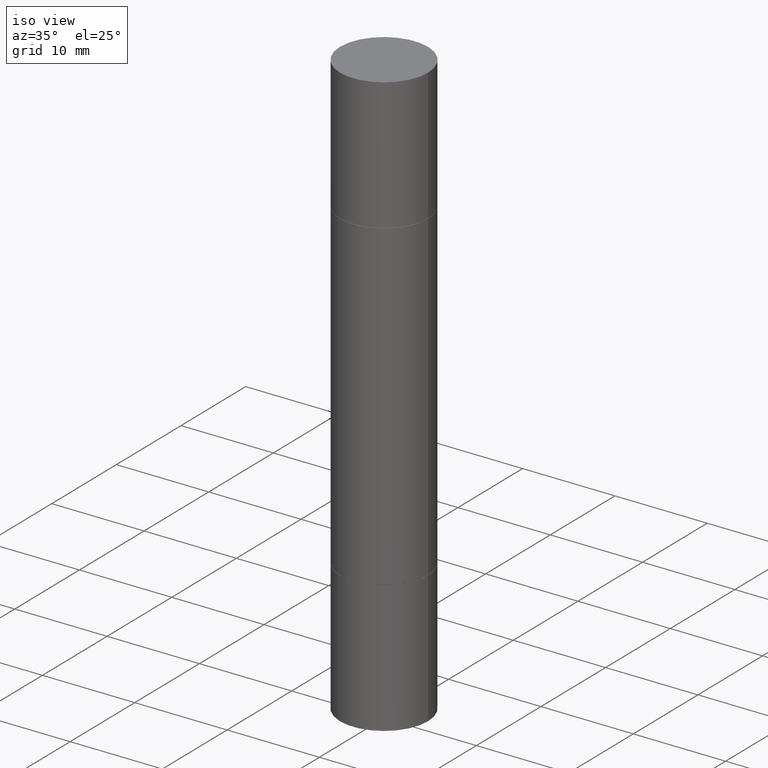
[diagram: clean part render]
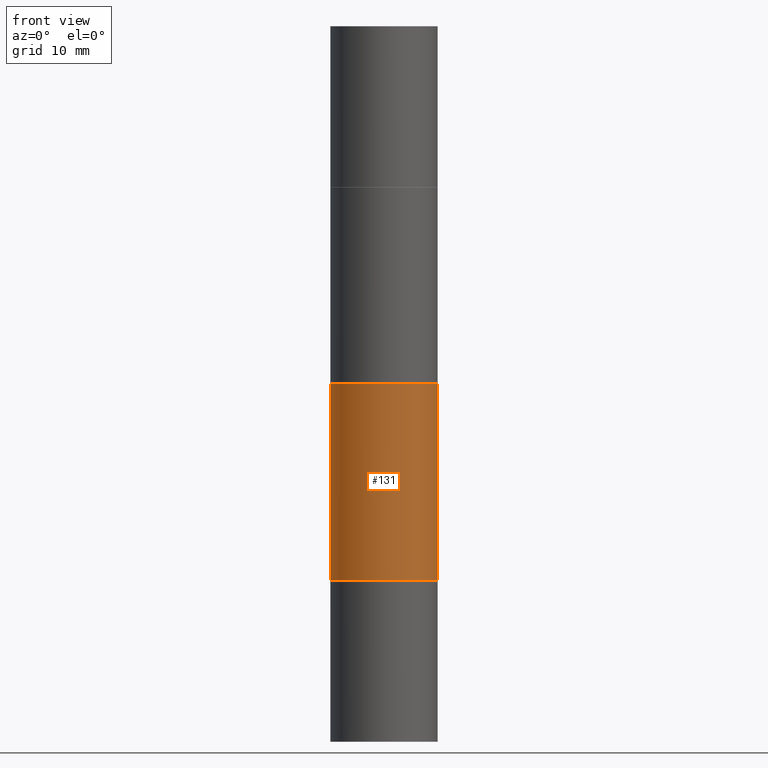
[diagram: tour spotlight — one face highlighted and labeled with its STEP entity id]
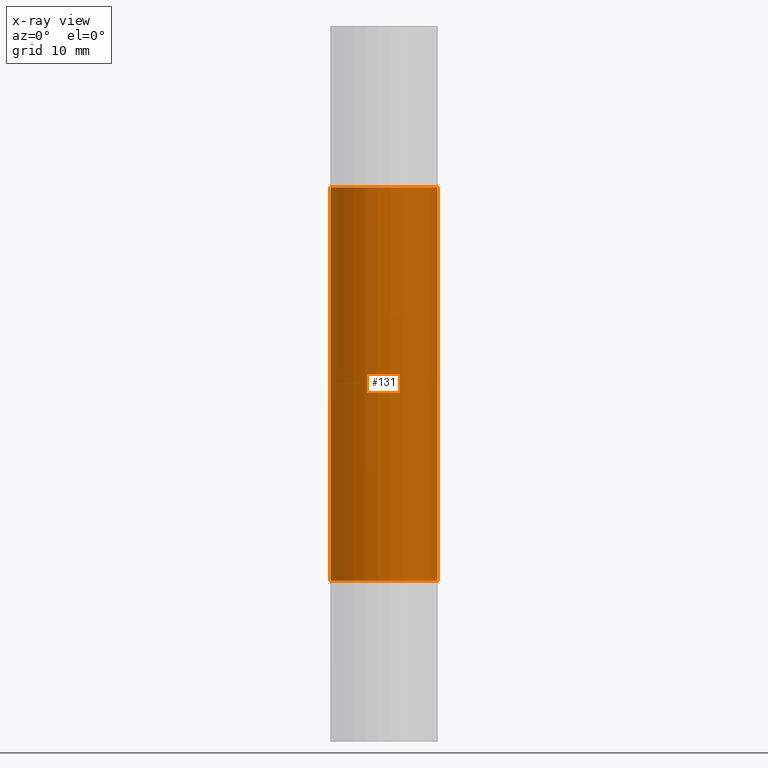
[diagram: x-ray of the same camera — body ghosted, this tour face saturated]
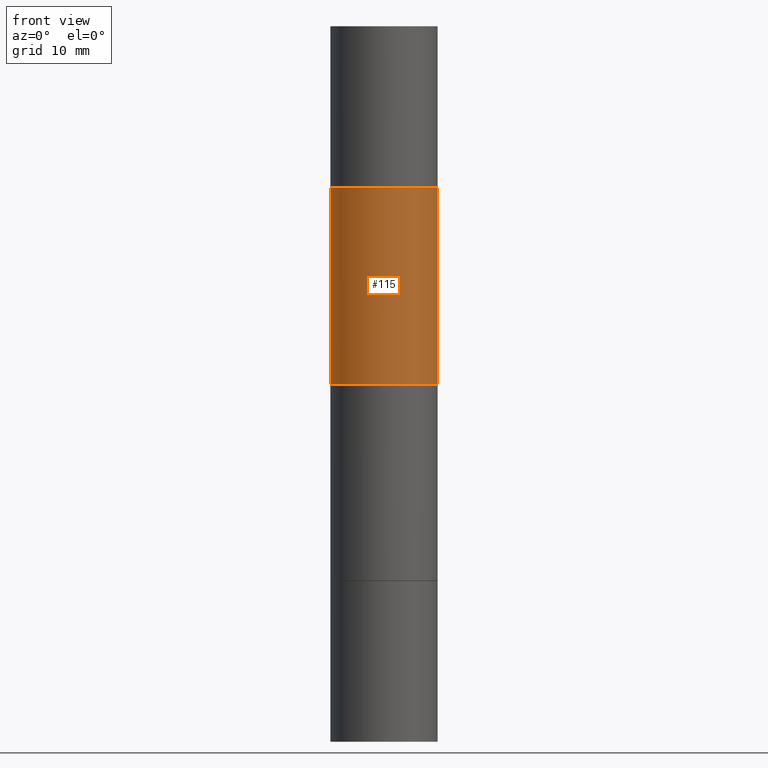
[diagram: tour spotlight — one face highlighted and labeled with its STEP entity id]
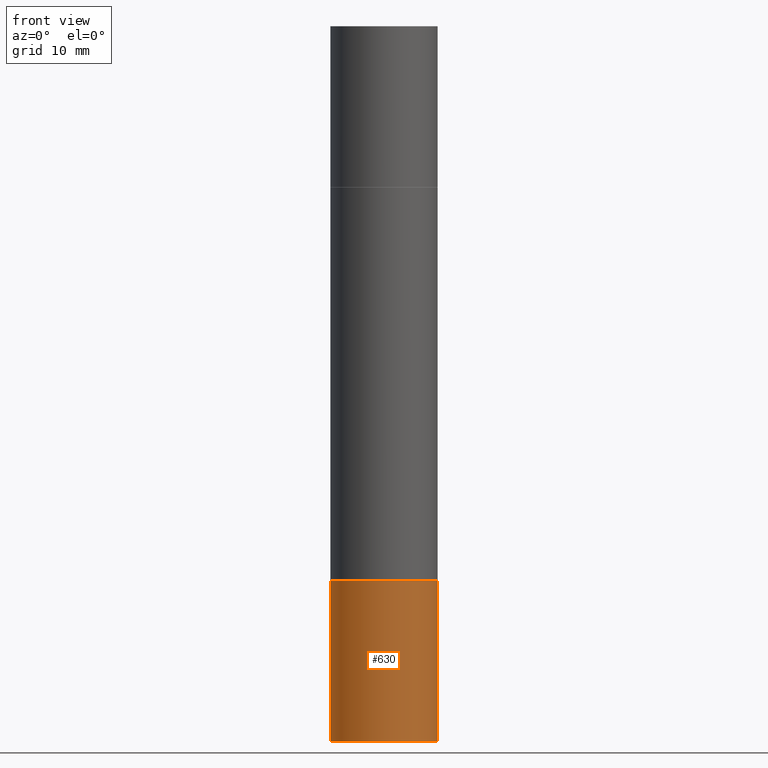
[diagram: tour spotlight — one face highlighted and labeled with its STEP entity id]
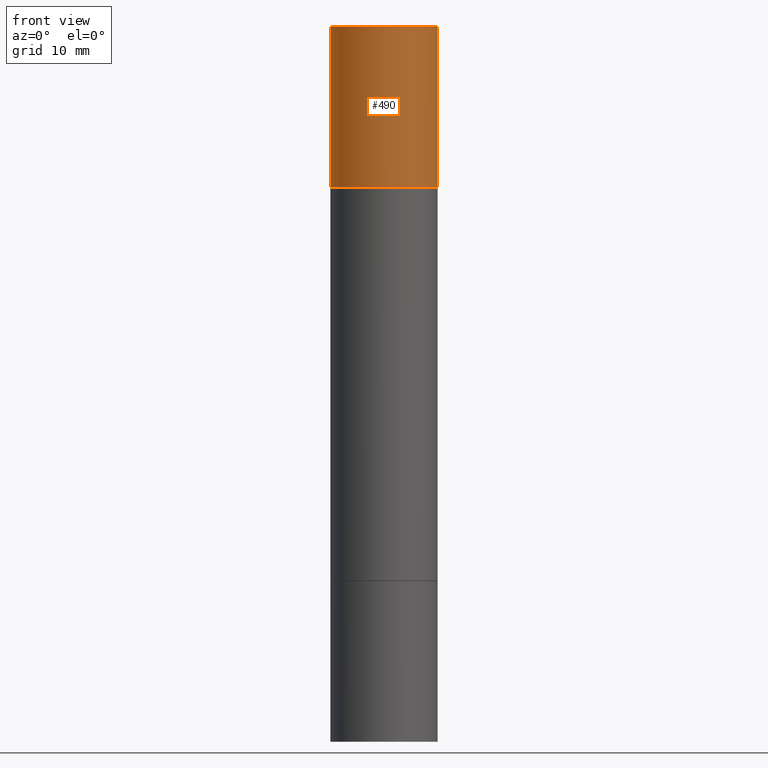
[diagram: tour spotlight — one face highlighted and labeled with its STEP entity id]
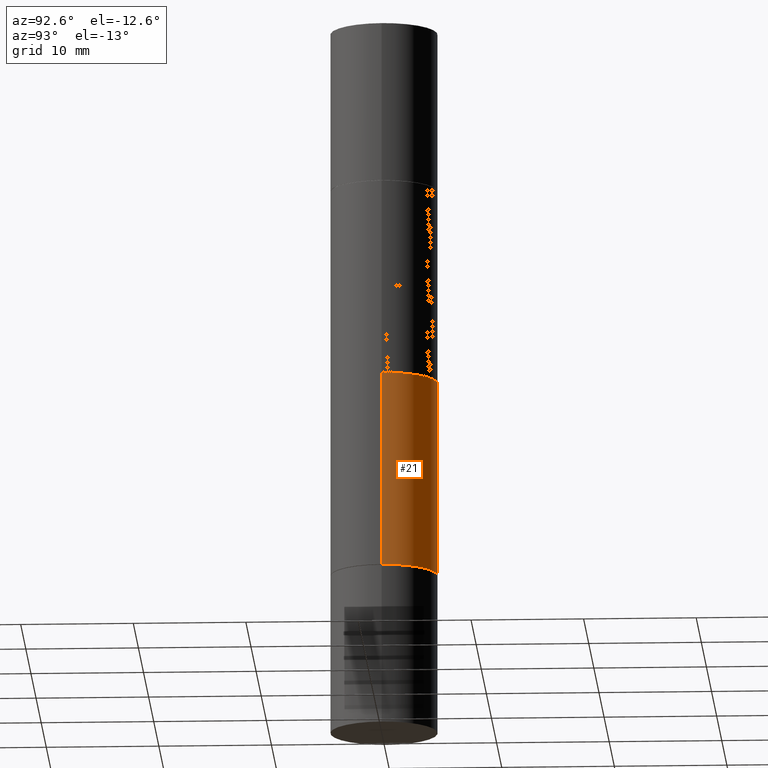
[diagram: tour spotlight — one face highlighted and labeled with its STEP entity id]
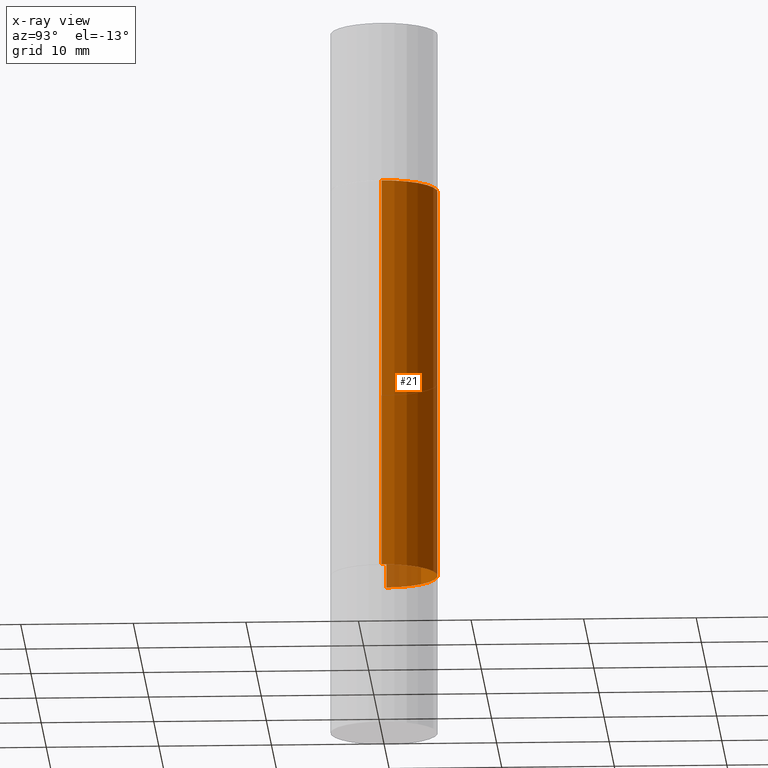
[diagram: x-ray of the same camera — body ghosted, this tour face saturated]
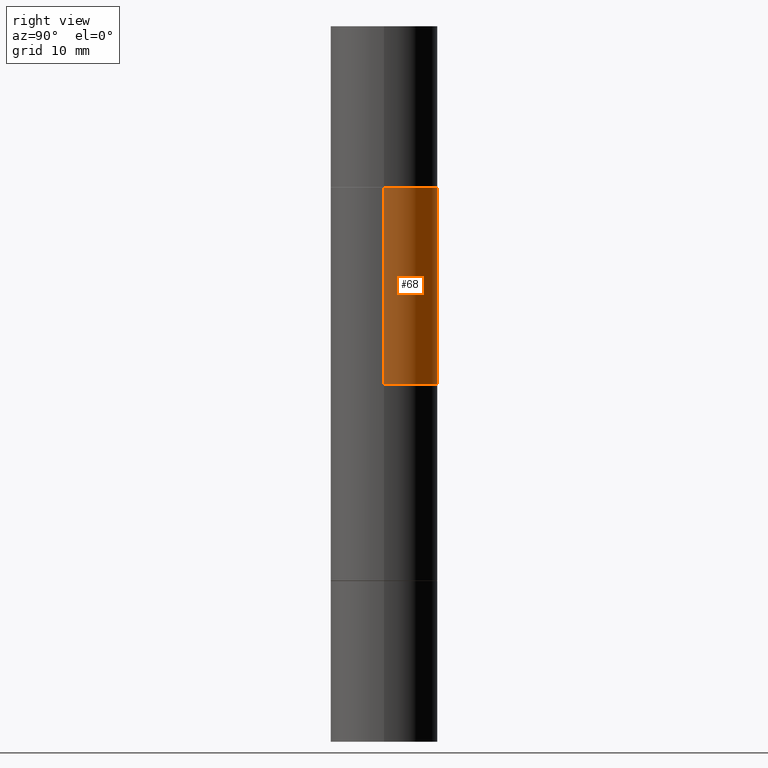
[diagram: tour spotlight — one face highlighted and labeled with its STEP entity id]
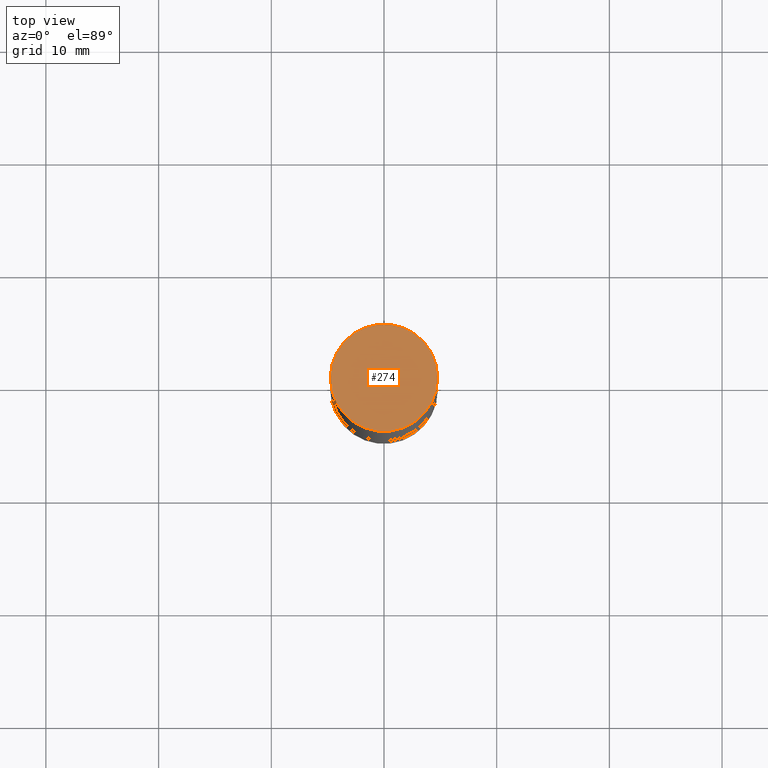
[diagram: tour spotlight — one face highlighted and labeled with its STEP entity id]
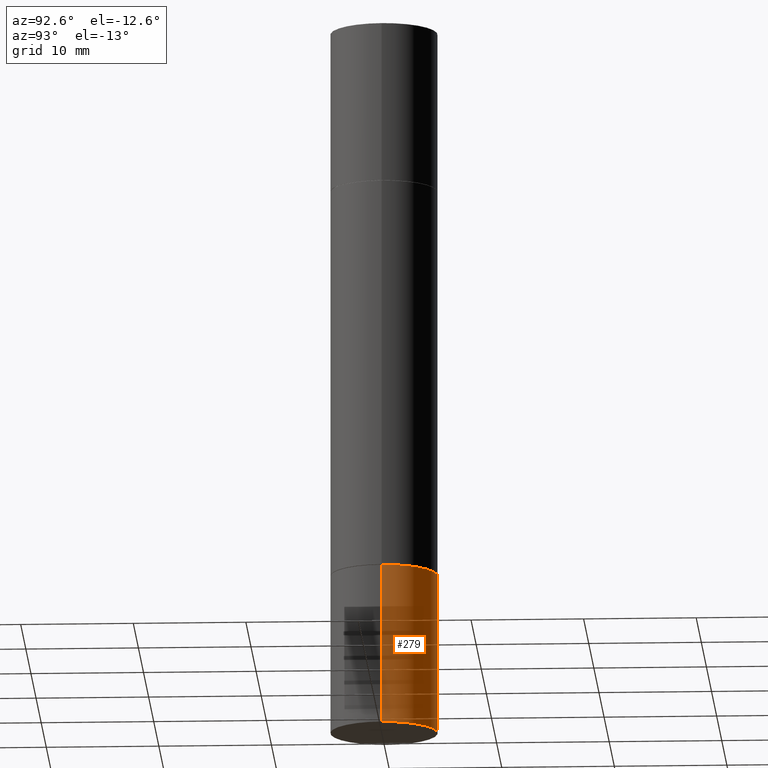
[diagram: tour spotlight — one face highlighted and labeled with its STEP entity id]
A machine part: a face-by-face anatomy tour. The part has 26 B-rep faces; the first image is the clean iso view, then the 8 largest visible faces are spotlighted one at a time (largest first), each with its STEP entity span.

Face 1 — front view, entity #131. An x-ray twin of the same camera follows (body ghosted, this face saturated) — the face is partly hidden behind the body. In plain terms, the highlighted cylindrical surface (partial cylindrical patch) has radius 4.7625 mm, axis along (-0, -0, -1).
Definition (entity closure, byte-faithful):
#15 = CIRCLE ( 'NONE', #492, 0.1875000000000000278 ) ;
#17 = FACE_OUTER_BOUND ( 'NONE', #320, .T. ) ;
#39 = VERTEX_POINT ( 'NONE', #82 ) ;
#42 = CIRCLE ( 'NONE', #161, 0.1875000000000000278 ) ;
#53 = DIRECTION ( 'NONE',  ( 1.000000000000000000, -6.982962677686266711E-15, 0.000000000000000000 ) ) ;
#54 = DIRECTION ( 'NONE',  ( 1.000000000000000000, -6.982962677686266711E-15, 0.000000000000000000 ) ) ;
#74 = DIRECTION ( 'NONE',  ( 1.000000000000000000, -6.982962677686270655E-15, 0.000000000000000000 ) ) ;
#82 = CARTESIAN_POINT ( 'NONE',  ( 0.1875000000000000278, -8.072304855405348046E-15, -1.936999999999999833 ) ) ;
#90 = EDGE_CURVE ( 'NONE', #565, #237, #15, .T. ) ;
#97 = ORIENTED_EDGE ( 'NONE', *, *, #90, .F. ) ;
#98 = CARTESIAN_POINT ( 'NONE',  ( 0.1874999999999999167, -1.003977019005979665E-14, -2.499999999999999556 ) ) ;
#126 = CARTESIAN_POINT ( 'NONE',  ( 4.736873077580609355E-29, -6.762999353339172249E-15, -1.936999999999999833 ) ) ;
#131 = ADVANCED_FACE ( 'NONE', ( #17 ), #216, .T. ) ;
#141 = DIRECTION ( 'NONE',  ( -2.445468806185136877E-29, -3.492890411551753071E-15, -1.000000000000000000 ) ) ;
#151 = EDGE_CURVE ( 'NONE', #565, #369, #434, .T. ) ;
#161 = AXIS2_PLACEMENT_3D ( 'NONE', #126, #454, #54 ) ;
#168 = CARTESIAN_POINT ( 'NONE',  ( -0.1874999999999999722, -3.078008298971767937E-15, -1.936999999999999833 ) ) ;
#189 = DIRECTION ( 'NONE',  ( -2.445468806185136597E-29, -3.492890411551752677E-15, -1.000000000000000000 ) ) ;
#216 = CYLINDRICAL_SURFACE ( 'NONE', #325, 0.1874999999999999167 ) ;
#237 = VERTEX_POINT ( 'NONE', #473 ) ;
#242 = LINE ( 'NONE', #98, #322 ) ;
#301 = CARTESIAN_POINT ( 'NONE',  ( 4.736873077580609355E-29, -1.964735960817877172E-15, -0.5629999999999997229 ) ) ;
#320 = EDGE_LOOP ( 'NONE', ( #97, #393, #365, #613 ) ) ;
#322 = VECTOR ( 'NONE', #141, 39.37007874015748143 ) ;
#325 = AXIS2_PLACEMENT_3D ( 'NONE', #647, #189, #74 ) ;
#365 = ORIENTED_EDGE ( 'NONE', *, *, #483, .T. ) ;
#369 = VERTEX_POINT ( 'NONE', #168 ) ;
#393 = ORIENTED_EDGE ( 'NONE', *, *, #151, .T. ) ;
#427 = VECTOR ( 'NONE', #501, 39.37007874015748143 ) ;
#434 = LINE ( 'NONE', #556, #427 ) ;
#454 = DIRECTION ( 'NONE',  ( -2.445468806185136597E-29, 3.491481338843145583E-15, 1.000000000000000000 ) ) ;
#473 = CARTESIAN_POINT ( 'NONE',  ( 0.1875000000000000278, -3.274041462884052574E-15, -0.5629999999999997229 ) ) ;
#483 = EDGE_CURVE ( 'NONE', #369, #39, #42, .T. ) ;
#492 = AXIS2_PLACEMENT_3D ( 'NONE', #301, #517, #53 ) ;
#501 = DIRECTION ( 'NONE',  ( -2.445468806185136877E-29, -3.492890411551753071E-15, -1.000000000000000000 ) ) ;
#517 = DIRECTION ( 'NONE',  ( 2.445468806185136597E-29, 3.492890411551752677E-15, 1.000000000000000000 ) ) ;
#556 = CARTESIAN_POINT ( 'NONE',  ( -0.1874999999999999167, -7.444121313411459473E-15, -2.499999999999999556 ) ) ;
#565 = VERTEX_POINT ( 'NONE', #619 ) ;
#613 = ORIENTED_EDGE ( 'NONE', *, *, #680, .F. ) ;
#619 = CARTESIAN_POINT ( 'NONE',  ( -0.1875000000000000278, -6.783925862357143136E-16, -0.5629999999999997229 ) ) ;
#647 = CARTESIAN_POINT ( 'NONE',  ( 0.000000000000000000, -8.730464687993621641E-15, -2.499999999999999556 ) ) ;
#680 = EDGE_CURVE ( 'NONE', #237, #39, #242, .T. ) ;

Face 2 — front view, entity #115. In plain terms, the highlighted cylindrical surface (partial cylindrical patch) has radius 4.7625 mm, axis along (-0, -0, -1).
Definition (entity closure, byte-faithful):
#35 = EDGE_CURVE ( 'NONE', #518, #119, #122, .T. ) ;
#38 = EDGE_LOOP ( 'NONE', ( #208, #278, #540, #476 ) ) ;
#56 = CARTESIAN_POINT ( 'NONE',  ( 0.1874999999999999167, -4.473849319252078646E-15, -1.249999999999999778 ) ) ;
#101 = AXIS2_PLACEMENT_3D ( 'NONE', #185, #281, #515 ) ;
#115 = ADVANCED_FACE ( 'NONE', ( #658 ), #548, .T. ) ;
#119 = VERTEX_POINT ( 'NONE', #209 ) ;
#122 = LINE ( 'NONE', #382, #225 ) ;
#142 = DIRECTION ( 'NONE',  ( 1.000000000000000000, -6.982962677686266711E-15, 0.000000000000000000 ) ) ;
#160 = CARTESIAN_POINT ( 'NONE',  ( 0.1875000000000000278, -3.274041462884052574E-15, -0.5629999999999997229 ) ) ;
#185 = CARTESIAN_POINT ( 'NONE',  ( 3.056836007731420185E-29, -4.364351673553931682E-15, -1.249999999999999778 ) ) ;
#192 = VERTEX_POINT ( 'NONE', #56 ) ;
#202 = AXIS2_PLACEMENT_3D ( 'NONE', #615, #302, #142 ) ;
#208 = ORIENTED_EDGE ( 'NONE', *, *, #516, .F. ) ;
#209 = CARTESIAN_POINT ( 'NONE',  ( -0.1874999999999999167, -1.878200442603741470E-15, -1.249999999999999778 ) ) ;
#225 = VECTOR ( 'NONE', #544, 39.37007874015748143 ) ;
#276 = VERTEX_POINT ( 'NONE', #160 ) ;
#278 = ORIENTED_EDGE ( 'NONE', *, *, #35, .T. ) ;
#281 = DIRECTION ( 'NONE',  ( -0.000000000000000000, -3.492185875197449130E-15, -1.000000000000000000 ) ) ;
#302 = DIRECTION ( 'NONE',  ( 2.445468806185136597E-29, 3.492890411551752677E-15, 1.000000000000000000 ) ) ;
#313 = DIRECTION ( 'NONE',  ( -2.445468806185136597E-29, -3.492890411551752677E-15, -1.000000000000000000 ) ) ;
#318 = DIRECTION ( 'NONE',  ( 1.000000000000000000, -6.982962677686270655E-15, 0.000000000000000000 ) ) ;
#341 = CARTESIAN_POINT ( 'NONE',  ( -0.1875000000000000278, -6.783925862357143136E-16, -0.5629999999999997229 ) ) ;
#357 = CIRCLE ( 'NONE', #202, 0.1875000000000000278 ) ;
#382 = CARTESIAN_POINT ( 'NONE',  ( -0.1874999999999999167, -7.444121313411459473E-15, -2.499999999999999556 ) ) ;
#386 = DIRECTION ( 'NONE',  ( -2.445468806185136877E-29, -3.492890411551753071E-15, -1.000000000000000000 ) ) ;
#476 = ORIENTED_EDGE ( 'NONE', *, *, #623, .F. ) ;
#513 = AXIS2_PLACEMENT_3D ( 'NONE', #639, #313, #318 ) ;
#515 = DIRECTION ( 'NONE',  ( 0.000000000000000000, 1.000000000000000000, -2.913971193241881950E-15 ) ) ;
#516 = EDGE_CURVE ( 'NONE', #518, #276, #357, .T. ) ;
#518 = VERTEX_POINT ( 'NONE', #341 ) ;
#520 = VECTOR ( 'NONE', #386, 39.37007874015748143 ) ;
#540 = ORIENTED_EDGE ( 'NONE', *, *, #580, .F. ) ;
#544 = DIRECTION ( 'NONE',  ( -2.445468806185136877E-29, -3.492890411551753071E-15, -1.000000000000000000 ) ) ;
#548 = CYLINDRICAL_SURFACE ( 'NONE', #513, 0.1874999999999999167 ) ;
#553 = CARTESIAN_POINT ( 'NONE',  ( 0.1874999999999999167, -1.003977019005979665E-14, -2.499999999999999556 ) ) ;
#562 = LINE ( 'NONE', #553, #520 ) ;
#563 = CIRCLE ( 'NONE', #101, 0.1874999999999999167 ) ;
#580 = EDGE_CURVE ( 'NONE', #192, #119, #563, .T. ) ;
#615 = CARTESIAN_POINT ( 'NONE',  ( 4.736873077580609355E-29, -1.964735960817877172E-15, -0.5629999999999997229 ) ) ;
#623 = EDGE_CURVE ( 'NONE', #276, #192, #562, .T. ) ;
#639 = CARTESIAN_POINT ( 'NONE',  ( 0.000000000000000000, -8.730464687993621641E-15, -2.499999999999999556 ) ) ;
#658 = FACE_OUTER_BOUND ( 'NONE', #38, .T. ) ;

Face 3 — front view, entity #630. In plain terms, the highlighted cylindrical surface (partial cylindrical patch) has radius 4.7625 mm, axis along (-0, 0, 1).
Definition (entity closure, byte-faithful):
#37 = DIRECTION ( 'NONE',  ( 1.000000000000000000, -6.982962677686265922E-15, 4.876176775795935793E-29 ) ) ;
#49 = AXIS2_PLACEMENT_3D ( 'NONE', #493, #497, #37 ) ;
#51 = CIRCLE ( 'NONE', #366, 0.1875000000000000278 ) ;
#52 = CARTESIAN_POINT ( 'NONE',  ( -0.1875000000000000278, -6.415329461342752645E-15, -1.937999999999999945 ) ) ;
#64 = DIRECTION ( 'NONE',  ( -2.445468806185136597E-29, 3.491481338843145583E-15, 1.000000000000000000 ) ) ;
#72 = VERTEX_POINT ( 'NONE', #408 ) ;
#81 = ORIENTED_EDGE ( 'NONE', *, *, #230, .F. ) ;
#100 = CIRCLE ( 'NONE', #479, 0.1875000000000000278 ) ;
#153 = ORIENTED_EDGE ( 'NONE', *, *, #199, .T. ) ;
#178 = CYLINDRICAL_SURFACE ( 'NONE', #49, 0.1875000000000000278 ) ;
#181 = VERTEX_POINT ( 'NONE', #652 ) ;
#197 = VECTOR ( 'NONE', #420, 39.37007874015748143 ) ;
#199 = EDGE_CURVE ( 'NONE', #648, #72, #100, .T. ) ;
#230 = EDGE_CURVE ( 'NONE', #590, #181, #51, .T. ) ;
#251 = VECTOR ( 'NONE', #537, 39.37007874015748143 ) ;
#255 = CARTESIAN_POINT ( 'NONE',  ( -0.1875000000000000278, 1.332267629550188046E-15, -9.223003294227947991E-30 ) ) ;
#273 = FACE_OUTER_BOUND ( 'NONE', #671, .T. ) ;
#321 = LINE ( 'NONE', #255, #197 ) ;
#331 = ORIENTED_EDGE ( 'NONE', *, *, #376, .T. ) ;
#332 = LINE ( 'NONE', #380, #251 ) ;
#336 = EDGE_CURVE ( 'NONE', #648, #590, #321, .T. ) ;
#366 = AXIS2_PLACEMENT_3D ( 'NONE', #523, #651, #593 ) ;
#373 = CARTESIAN_POINT ( 'NONE',  ( -0.1875000000000000278, -6.415329461342752645E-15, -2.500000000000000000 ) ) ;
#376 = EDGE_CURVE ( 'NONE', #72, #181, #332, .T. ) ;
#380 = CARTESIAN_POINT ( 'NONE',  ( 0.1875000000000000278, -1.309305502066175008E-15, 9.142831454617381013E-30 ) ) ;
#388 = ORIENTED_EDGE ( 'NONE', *, *, #336, .F. ) ;
#408 = CARTESIAN_POINT ( 'NONE',  ( 0.1875000000000000278, -1.003800884917403995E-14, -2.500000000000000000 ) ) ;
#420 = DIRECTION ( 'NONE',  ( -2.445468806185136877E-29, 3.491481338843145188E-15, 1.000000000000000000 ) ) ;
#428 = DIRECTION ( 'NONE',  ( 1.000000000000000000, -6.982962677686266711E-15, 0.000000000000000000 ) ) ;
#479 = AXIS2_PLACEMENT_3D ( 'NONE', #485, #64, #428 ) ;
#485 = CARTESIAN_POINT ( 'NONE',  ( 6.113672015462842613E-29, -8.728703347107864943E-15, -2.500000000000000000 ) ) ;
#493 = CARTESIAN_POINT ( 'NONE',  ( 0.000000000000000000, 0.000000000000000000, 0.000000000000000000 ) ) ;
#497 = DIRECTION ( 'NONE',  ( -2.445468806185136597E-29, 3.491481338843145583E-15, 1.000000000000000000 ) ) ;
#523 = CARTESIAN_POINT ( 'NONE',  ( 4.739318546386794397E-29, -6.766490834678016045E-15, -1.937999999999999945 ) ) ;
#537 = DIRECTION ( 'NONE',  ( -2.445468806185136877E-29, 3.491481338843145188E-15, 1.000000000000000000 ) ) ;
#590 = VERTEX_POINT ( 'NONE', #52 ) ;
#593 = DIRECTION ( 'NONE',  ( 1.000000000000000000, -6.982962677686266711E-15, 0.000000000000000000 ) ) ;
#630 = ADVANCED_FACE ( 'NONE', ( #273 ), #178, .T. ) ;
#648 = VERTEX_POINT ( 'NONE', #373 ) ;
#651 = DIRECTION ( 'NONE',  ( -2.445468806185136597E-29, 3.491481338843145583E-15, 1.000000000000000000 ) ) ;
#652 = CARTESIAN_POINT ( 'NONE',  ( 0.1875000000000000278, -8.075796336744191053E-15, -1.937999999999999945 ) ) ;
#671 = EDGE_LOOP ( 'NONE', ( #388, #153, #331, #81 ) ) ;

Face 4 — front view, entity #490. In plain terms, the highlighted cylindrical surface (partial cylindrical patch) has radius 4.7625 mm, axis along (-0, -0, -1).
Definition (entity closure, byte-faithful):
#12 = ORIENTED_EDGE ( 'NONE', *, *, #46, .F. ) ;
#28 = DIRECTION ( 'NONE',  ( 2.445468806185136597E-29, 3.492890411551752677E-15, 1.000000000000000000 ) ) ;
#33 = DIRECTION ( 'NONE',  ( 1.000000000000000000, -6.982962677686265922E-15, 0.000000000000000000 ) ) ;
#40 = VERTEX_POINT ( 'NONE', #139 ) ;
#44 = CARTESIAN_POINT ( 'NONE',  ( 6.113672015462842613E-29, 1.761340885760521790E-18, 5.463695987328526437E-16 ) ) ;
#46 = EDGE_CURVE ( 'NONE', #601, #40, #138, .T. ) ;
#73 = DIRECTION ( 'NONE',  ( 2.445468806185136597E-29, 3.492890411551752677E-15, 1.000000000000000000 ) ) ;
#84 = CARTESIAN_POINT ( 'NONE',  ( -0.1875000000000000278, 3.066025098218802702E-16, 5.463695987328561936E-16 ) ) ;
#91 = VERTEX_POINT ( 'NONE', #204 ) ;
#99 = VERTEX_POINT ( 'NONE', #243 ) ;
#105 = DIRECTION ( 'NONE',  ( 1.000000000000000000, -6.982962677686266711E-15, 0.000000000000000000 ) ) ;
#138 = CIRCLE ( 'NONE', #622, 0.1875000000000000278 ) ;
#139 = CARTESIAN_POINT ( 'NONE',  ( 0.1875000000000000278, -1.307544161180414563E-15, 5.463695987328526437E-16 ) ) ;
#167 = DIRECTION ( 'NONE',  ( -2.445468806185136877E-29, -3.492890411551753071E-15, -1.000000000000000000 ) ) ;
#193 = ORIENTED_EDGE ( 'NONE', *, *, #611, .F. ) ;
#204 = CARTESIAN_POINT ( 'NONE',  ( -0.1875000000000000278, 3.066025098218802702E-16, -0.5619999999999996110 ) ) ;
#211 = VECTOR ( 'NONE', #167, 39.37007874015748143 ) ;
#243 = CARTESIAN_POINT ( 'NONE',  ( 0.1875000000000000278, -3.270548572472500038E-15, -0.5619999999999996110 ) ) ;
#256 = LINE ( 'NONE', #587, #599 ) ;
#272 = LINE ( 'NONE', #455, #211 ) ;
#285 = EDGE_LOOP ( 'NONE', ( #12, #475, #592, #193 ) ) ;
#308 = AXIS2_PLACEMENT_3D ( 'NONE', #411, #399, #105 ) ;
#311 = DIRECTION ( 'NONE',  ( -2.445468806185136877E-29, -3.492890411551753071E-15, -1.000000000000000000 ) ) ;
#334 = DIRECTION ( 'NONE',  ( 1.000000000000000000, -6.982962677686266711E-15, 0.000000000000000000 ) ) ;
#345 = EDGE_CURVE ( 'NONE', #601, #91, #256, .T. ) ;
#361 = FACE_OUTER_BOUND ( 'NONE', #285, .T. ) ;
#384 = EDGE_CURVE ( 'NONE', #91, #99, #459, .T. ) ;
#399 = DIRECTION ( 'NONE',  ( -2.445468806185136597E-29, -3.492890411551752677E-15, -1.000000000000000000 ) ) ;
#411 = CARTESIAN_POINT ( 'NONE',  ( 0.000000000000000000, -8.730464687993621641E-15, -2.499999999999999556 ) ) ;
#455 = CARTESIAN_POINT ( 'NONE',  ( 0.1875000000000000278, -1.003977019005979665E-14, -2.499999999999999556 ) ) ;
#459 = CIRCLE ( 'NONE', #661, 0.1875000000000000278 ) ;
#475 = ORIENTED_EDGE ( 'NONE', *, *, #345, .T. ) ;
#490 = ADVANCED_FACE ( 'NONE', ( #361 ), #506, .T. ) ;
#495 = CARTESIAN_POINT ( 'NONE',  ( 4.739318546386794397E-29, -1.961243070406324635E-15, -0.5619999999999996110 ) ) ;
#506 = CYLINDRICAL_SURFACE ( 'NONE', #308, 0.1875000000000000278 ) ;
#587 = CARTESIAN_POINT ( 'NONE',  ( -0.1875000000000000278, -7.444121313411457895E-15, -2.499999999999999556 ) ) ;
#592 = ORIENTED_EDGE ( 'NONE', *, *, #384, .T. ) ;
#599 = VECTOR ( 'NONE', #311, 39.37007874015748143 ) ;
#601 = VERTEX_POINT ( 'NONE', #84 ) ;
#611 = EDGE_CURVE ( 'NONE', #40, #99, #272, .T. ) ;
#622 = AXIS2_PLACEMENT_3D ( 'NONE', #44, #28, #33 ) ;
#661 = AXIS2_PLACEMENT_3D ( 'NONE', #495, #73, #334 ) ;

Face 5 — auxiliary view, entity #21. An x-ray twin of the same camera follows (body ghosted, this face saturated) — the face is partly hidden behind the body. In plain terms, the highlighted cylindrical surface (partial cylindrical patch) has radius 4.7625 mm, axis along (-0, -0, -1).
Definition (entity closure, byte-faithful):
#3 = CIRCLE ( 'NONE', #654, 0.1875000000000000278 ) ;
#21 = ADVANCED_FACE ( 'NONE', ( #266 ), #486, .T. ) ;
#24 = CARTESIAN_POINT ( 'NONE',  ( 0.000000000000000000, -8.730464687993621641E-15, -2.499999999999999556 ) ) ;
#32 = AXIS2_PLACEMENT_3D ( 'NONE', #24, #478, #653 ) ;
#39 = VERTEX_POINT ( 'NONE', #82 ) ;
#61 = DIRECTION ( 'NONE',  ( 2.445468806185136597E-29, 3.492890411551752677E-15, 1.000000000000000000 ) ) ;
#82 = CARTESIAN_POINT ( 'NONE',  ( 0.1875000000000000278, -8.072304855405348046E-15, -1.936999999999999833 ) ) ;
#98 = CARTESIAN_POINT ( 'NONE',  ( 0.1874999999999999167, -1.003977019005979665E-14, -2.499999999999999556 ) ) ;
#104 = CARTESIAN_POINT ( 'NONE',  ( 4.736873077580609355E-29, -1.964735960817877172E-15, -0.5629999999999997229 ) ) ;
#141 = DIRECTION ( 'NONE',  ( -2.445468806185136877E-29, -3.492890411551753071E-15, -1.000000000000000000 ) ) ;
#151 = EDGE_CURVE ( 'NONE', #565, #369, #434, .T. ) ;
#166 = ORIENTED_EDGE ( 'NONE', *, *, #469, .T. ) ;
#168 = CARTESIAN_POINT ( 'NONE',  ( -0.1874999999999999722, -3.078008298971767937E-15, -1.936999999999999833 ) ) ;
#190 = EDGE_CURVE ( 'NONE', #237, #565, #609, .T. ) ;
#231 = CARTESIAN_POINT ( 'NONE',  ( 4.736873077580609355E-29, -6.762999353339172249E-15, -1.936999999999999833 ) ) ;
#237 = VERTEX_POINT ( 'NONE', #473 ) ;
#242 = LINE ( 'NONE', #98, #322 ) ;
#266 = FACE_OUTER_BOUND ( 'NONE', #666, .T. ) ;
#277 = ORIENTED_EDGE ( 'NONE', *, *, #680, .T. ) ;
#322 = VECTOR ( 'NONE', #141, 39.37007874015748143 ) ;
#369 = VERTEX_POINT ( 'NONE', #168 ) ;
#370 = ORIENTED_EDGE ( 'NONE', *, *, #190, .F. ) ;
#374 = DIRECTION ( 'NONE',  ( -2.445468806185136597E-29, 3.491481338843145583E-15, 1.000000000000000000 ) ) ;
#427 = VECTOR ( 'NONE', #501, 39.37007874015748143 ) ;
#434 = LINE ( 'NONE', #556, #427 ) ;
#469 = EDGE_CURVE ( 'NONE', #39, #369, #3, .T. ) ;
#473 = CARTESIAN_POINT ( 'NONE',  ( 0.1875000000000000278, -3.274041462884052574E-15, -0.5629999999999997229 ) ) ;
#478 = DIRECTION ( 'NONE',  ( -2.445468806185136597E-29, -3.492890411551752677E-15, -1.000000000000000000 ) ) ;
#484 = DIRECTION ( 'NONE',  ( 1.000000000000000000, -6.982962677686266711E-15, 0.000000000000000000 ) ) ;
#486 = CYLINDRICAL_SURFACE ( 'NONE', #32, 0.1874999999999999167 ) ;
#501 = DIRECTION ( 'NONE',  ( -2.445468806185136877E-29, -3.492890411551753071E-15, -1.000000000000000000 ) ) ;
#556 = CARTESIAN_POINT ( 'NONE',  ( -0.1874999999999999167, -7.444121313411459473E-15, -2.499999999999999556 ) ) ;
#565 = VERTEX_POINT ( 'NONE', #619 ) ;
#609 = CIRCLE ( 'NONE', #656, 0.1875000000000000278 ) ;
#619 = CARTESIAN_POINT ( 'NONE',  ( -0.1875000000000000278, -6.783925862357143136E-16, -0.5629999999999997229 ) ) ;
#629 = ORIENTED_EDGE ( 'NONE', *, *, #151, .F. ) ;
#646 = DIRECTION ( 'NONE',  ( 1.000000000000000000, -6.982962677686266711E-15, 0.000000000000000000 ) ) ;
#653 = DIRECTION ( 'NONE',  ( 1.000000000000000000, -6.982962677686270655E-15, 0.000000000000000000 ) ) ;
#654 = AXIS2_PLACEMENT_3D ( 'NONE', #231, #374, #484 ) ;
#656 = AXIS2_PLACEMENT_3D ( 'NONE', #104, #61, #646 ) ;
#666 = EDGE_LOOP ( 'NONE', ( #629, #370, #277, #166 ) ) ;
#680 = EDGE_CURVE ( 'NONE', #237, #39, #242, .T. ) ;

Face 6 — right view, entity #68. In plain terms, the highlighted cylindrical surface (partial cylindrical patch) has radius 4.7625 mm, axis along (-0, -0, -1).
Definition (entity closure, byte-faithful):
#18 = AXIS2_PLACEMENT_3D ( 'NONE', #258, #71, #649 ) ;
#25 = DIRECTION ( 'NONE',  ( 1.000000000000000000, -6.982962677686266711E-15, 0.000000000000000000 ) ) ;
#34 = CARTESIAN_POINT ( 'NONE',  ( 4.736873077580609355E-29, -1.964735960817877172E-15, -0.5629999999999997229 ) ) ;
#35 = EDGE_CURVE ( 'NONE', #518, #119, #122, .T. ) ;
#56 = CARTESIAN_POINT ( 'NONE',  ( 0.1874999999999999167, -4.473849319252078646E-15, -1.249999999999999778 ) ) ;
#68 = ADVANCED_FACE ( 'NONE', ( #145 ), #346, .T. ) ;
#69 = AXIS2_PLACEMENT_3D ( 'NONE', #437, #177, #354 ) ;
#71 = DIRECTION ( 'NONE',  ( -0.000000000000000000, -3.492185875197449130E-15, -1.000000000000000000 ) ) ;
#80 = CIRCLE ( 'NONE', #18, 0.1874999999999999167 ) ;
#103 = ORIENTED_EDGE ( 'NONE', *, *, #623, .T. ) ;
#119 = VERTEX_POINT ( 'NONE', #209 ) ;
#122 = LINE ( 'NONE', #382, #225 ) ;
#145 = FACE_OUTER_BOUND ( 'NONE', #471, .T. ) ;
#146 = AXIS2_PLACEMENT_3D ( 'NONE', #34, #659, #25 ) ;
#160 = CARTESIAN_POINT ( 'NONE',  ( 0.1875000000000000278, -3.274041462884052574E-15, -0.5629999999999997229 ) ) ;
#177 = DIRECTION ( 'NONE',  ( -2.445468806185136597E-29, -3.492890411551752677E-15, -1.000000000000000000 ) ) ;
#192 = VERTEX_POINT ( 'NONE', #56 ) ;
#209 = CARTESIAN_POINT ( 'NONE',  ( -0.1874999999999999167, -1.878200442603741470E-15, -1.249999999999999778 ) ) ;
#225 = VECTOR ( 'NONE', #544, 39.37007874015748143 ) ;
#248 = EDGE_CURVE ( 'NONE', #119, #192, #80, .T. ) ;
#258 = CARTESIAN_POINT ( 'NONE',  ( 3.056836007731420185E-29, -4.364351673553931682E-15, -1.249999999999999778 ) ) ;
#276 = VERTEX_POINT ( 'NONE', #160 ) ;
#282 = CIRCLE ( 'NONE', #146, 0.1875000000000000278 ) ;
#341 = CARTESIAN_POINT ( 'NONE',  ( -0.1875000000000000278, -6.783925862357143136E-16, -0.5629999999999997229 ) ) ;
#346 = CYLINDRICAL_SURFACE ( 'NONE', #69, 0.1874999999999999167 ) ;
#354 = DIRECTION ( 'NONE',  ( 1.000000000000000000, -6.982962677686270655E-15, 0.000000000000000000 ) ) ;
#382 = CARTESIAN_POINT ( 'NONE',  ( -0.1874999999999999167, -7.444121313411459473E-15, -2.499999999999999556 ) ) ;
#386 = DIRECTION ( 'NONE',  ( -2.445468806185136877E-29, -3.492890411551753071E-15, -1.000000000000000000 ) ) ;
#437 = CARTESIAN_POINT ( 'NONE',  ( 0.000000000000000000, -8.730464687993621641E-15, -2.499999999999999556 ) ) ;
#449 = EDGE_CURVE ( 'NONE', #276, #518, #282, .T. ) ;
#452 = ORIENTED_EDGE ( 'NONE', *, *, #449, .F. ) ;
#471 = EDGE_LOOP ( 'NONE', ( #584, #452, #103, #614 ) ) ;
#518 = VERTEX_POINT ( 'NONE', #341 ) ;
#520 = VECTOR ( 'NONE', #386, 39.37007874015748143 ) ;
#544 = DIRECTION ( 'NONE',  ( -2.445468806185136877E-29, -3.492890411551753071E-15, -1.000000000000000000 ) ) ;
#553 = CARTESIAN_POINT ( 'NONE',  ( 0.1874999999999999167, -1.003977019005979665E-14, -2.499999999999999556 ) ) ;
#562 = LINE ( 'NONE', #553, #520 ) ;
#584 = ORIENTED_EDGE ( 'NONE', *, *, #35, .F. ) ;
#614 = ORIENTED_EDGE ( 'NONE', *, *, #248, .F. ) ;
#623 = EDGE_CURVE ( 'NONE', #276, #192, #562, .T. ) ;
#649 = DIRECTION ( 'NONE',  ( 0.000000000000000000, 1.000000000000000000, -2.913971193241881950E-15 ) ) ;
#659 = DIRECTION ( 'NONE',  ( 2.445468806185136597E-29, 3.492890411551752677E-15, 1.000000000000000000 ) ) ;

Face 7 — top view, entity #274. In plain terms, the highlighted planar face has unit normal (0, 0, 1).
Definition (entity closure, byte-faithful):
#28 = DIRECTION ( 'NONE',  ( 2.445468806185136597E-29, 3.492890411551752677E-15, 1.000000000000000000 ) ) ;
#33 = DIRECTION ( 'NONE',  ( 1.000000000000000000, -6.982962677686265922E-15, 0.000000000000000000 ) ) ;
#40 = VERTEX_POINT ( 'NONE', #139 ) ;
#44 = CARTESIAN_POINT ( 'NONE',  ( 6.113672015462842613E-29, 1.761340885760521790E-18, 5.463695987328526437E-16 ) ) ;
#46 = EDGE_CURVE ( 'NONE', #601, #40, #138, .T. ) ;
#84 = CARTESIAN_POINT ( 'NONE',  ( -0.1875000000000000278, 3.066025098218802702E-16, 5.463695987328561936E-16 ) ) ;
#88 = ORIENTED_EDGE ( 'NONE', *, *, #409, .T. ) ;
#102 = AXIS2_PLACEMENT_3D ( 'NONE', #265, #359, #582 ) ;
#138 = CIRCLE ( 'NONE', #622, 0.1875000000000000278 ) ;
#139 = CARTESIAN_POINT ( 'NONE',  ( 0.1875000000000000278, -1.307544161180414563E-15, 5.463695987328526437E-16 ) ) ;
#188 = AXIS2_PLACEMENT_3D ( 'NONE', #545, #224, #660 ) ;
#224 = DIRECTION ( 'NONE',  ( 2.445468806185136597E-29, 3.492890411551752677E-15, 1.000000000000000000 ) ) ;
#265 = CARTESIAN_POINT ( 'NONE',  ( 1.309305502066236145E-15, 0.1874999999999999722, 0.000000000000000000 ) ) ;
#274 = ADVANCED_FACE ( 'NONE', ( #534 ), #416, .T. ) ;
#359 = DIRECTION ( 'NONE',  ( 2.438088387897959769E-29, 3.492890411551753071E-15, 1.000000000000000000 ) ) ;
#409 = EDGE_CURVE ( 'NONE', #40, #601, #511, .T. ) ;
#416 = PLANE ( 'NONE',  #102 ) ;
#421 = EDGE_LOOP ( 'NONE', ( #88, #581 ) ) ;
#511 = CIRCLE ( 'NONE', #188, 0.1875000000000000278 ) ;
#534 = FACE_OUTER_BOUND ( 'NONE', #421, .T. ) ;
#545 = CARTESIAN_POINT ( 'NONE',  ( 6.113672015462842613E-29, 1.761340885760521790E-18, 5.463695987328526437E-16 ) ) ;
#581 = ORIENTED_EDGE ( 'NONE', *, *, #46, .T. ) ;
#582 = DIRECTION ( 'NONE',  ( -1.000000000000000000, 6.982962677686265922E-15, -9.839502134516470631E-33 ) ) ;
#601 = VERTEX_POINT ( 'NONE', #84 ) ;
#622 = AXIS2_PLACEMENT_3D ( 'NONE', #44, #28, #33 ) ;
#660 = DIRECTION ( 'NONE',  ( 1.000000000000000000, -6.982962677686265922E-15, 0.000000000000000000 ) ) ;

Face 8 — auxiliary view, entity #279. In plain terms, the highlighted cylindrical surface (partial cylindrical patch) has radius 4.7625 mm, axis along (-0, 0, 1).
Definition (entity closure, byte-faithful):
#52 = CARTESIAN_POINT ( 'NONE',  ( -0.1875000000000000278, -6.415329461342752645E-15, -1.937999999999999945 ) ) ;
#72 = VERTEX_POINT ( 'NONE', #408 ) ;
#96 = CARTESIAN_POINT ( 'NONE',  ( 4.739318546386794397E-29, -6.766490834678016045E-15, -1.937999999999999945 ) ) ;
#109 = EDGE_CURVE ( 'NONE', #181, #590, #253, .T. ) ;
#111 = FACE_OUTER_BOUND ( 'NONE', #550, .T. ) ;
#114 = AXIS2_PLACEMENT_3D ( 'NONE', #367, #432, #218 ) ;
#128 = DIRECTION ( 'NONE',  ( 1.000000000000000000, -6.982962677686265922E-15, 4.876176775795935793E-29 ) ) ;
#157 = CARTESIAN_POINT ( 'NONE',  ( 0.000000000000000000, 0.000000000000000000, 0.000000000000000000 ) ) ;
#159 = ORIENTED_EDGE ( 'NONE', *, *, #376, .F. ) ;
#181 = VERTEX_POINT ( 'NONE', #652 ) ;
#191 = CIRCLE ( 'NONE', #114, 0.1875000000000000278 ) ;
#197 = VECTOR ( 'NONE', #420, 39.37007874015748143 ) ;
#203 = EDGE_CURVE ( 'NONE', #72, #648, #191, .T. ) ;
#218 = DIRECTION ( 'NONE',  ( 1.000000000000000000, -6.982962677686266711E-15, 0.000000000000000000 ) ) ;
#236 = AXIS2_PLACEMENT_3D ( 'NONE', #96, #351, #414 ) ;
#251 = VECTOR ( 'NONE', #537, 39.37007874015748143 ) ;
#253 = CIRCLE ( 'NONE', #236, 0.1875000000000000278 ) ;
#255 = CARTESIAN_POINT ( 'NONE',  ( -0.1875000000000000278, 1.332267629550188046E-15, -9.223003294227947991E-30 ) ) ;
#279 = ADVANCED_FACE ( 'NONE', ( #111 ), #637, .T. ) ;
#321 = LINE ( 'NONE', #255, #197 ) ;
#332 = LINE ( 'NONE', #380, #251 ) ;
#336 = EDGE_CURVE ( 'NONE', #648, #590, #321, .T. ) ;
#351 = DIRECTION ( 'NONE',  ( -2.445468806185136597E-29, 3.491481338843145583E-15, 1.000000000000000000 ) ) ;
#362 = DIRECTION ( 'NONE',  ( -2.445468806185136597E-29, 3.491481338843145583E-15, 1.000000000000000000 ) ) ;
#367 = CARTESIAN_POINT ( 'NONE',  ( 6.113672015462842613E-29, -8.728703347107864943E-15, -2.500000000000000000 ) ) ;
#373 = CARTESIAN_POINT ( 'NONE',  ( -0.1875000000000000278, -6.415329461342752645E-15, -2.500000000000000000 ) ) ;
#376 = EDGE_CURVE ( 'NONE', #72, #181, #332, .T. ) ;
#380 = CARTESIAN_POINT ( 'NONE',  ( 0.1875000000000000278, -1.309305502066175008E-15, 9.142831454617381013E-30 ) ) ;
#408 = CARTESIAN_POINT ( 'NONE',  ( 0.1875000000000000278, -1.003800884917403995E-14, -2.500000000000000000 ) ) ;
#414 = DIRECTION ( 'NONE',  ( 1.000000000000000000, -6.982962677686266711E-15, 0.000000000000000000 ) ) ;
#420 = DIRECTION ( 'NONE',  ( -2.445468806185136877E-29, 3.491481338843145188E-15, 1.000000000000000000 ) ) ;
#432 = DIRECTION ( 'NONE',  ( -2.445468806185136597E-29, 3.491481338843145583E-15, 1.000000000000000000 ) ) ;
#442 = ORIENTED_EDGE ( 'NONE', *, *, #203, .T. ) ;
#494 = ORIENTED_EDGE ( 'NONE', *, *, #336, .T. ) ;
#508 = ORIENTED_EDGE ( 'NONE', *, *, #109, .F. ) ;
#537 = DIRECTION ( 'NONE',  ( -2.445468806185136877E-29, 3.491481338843145188E-15, 1.000000000000000000 ) ) ;
#550 = EDGE_LOOP ( 'NONE', ( #442, #494, #508, #159 ) ) ;
#575 = AXIS2_PLACEMENT_3D ( 'NONE', #157, #362, #128 ) ;
#590 = VERTEX_POINT ( 'NONE', #52 ) ;
#637 = CYLINDRICAL_SURFACE ( 'NONE', #575, 0.1875000000000000278 ) ;
#648 = VERTEX_POINT ( 'NONE', #373 ) ;
#652 = CARTESIAN_POINT ( 'NONE',  ( 0.1875000000000000278, -8.075796336744191053E-15, -1.937999999999999945 ) ) ;